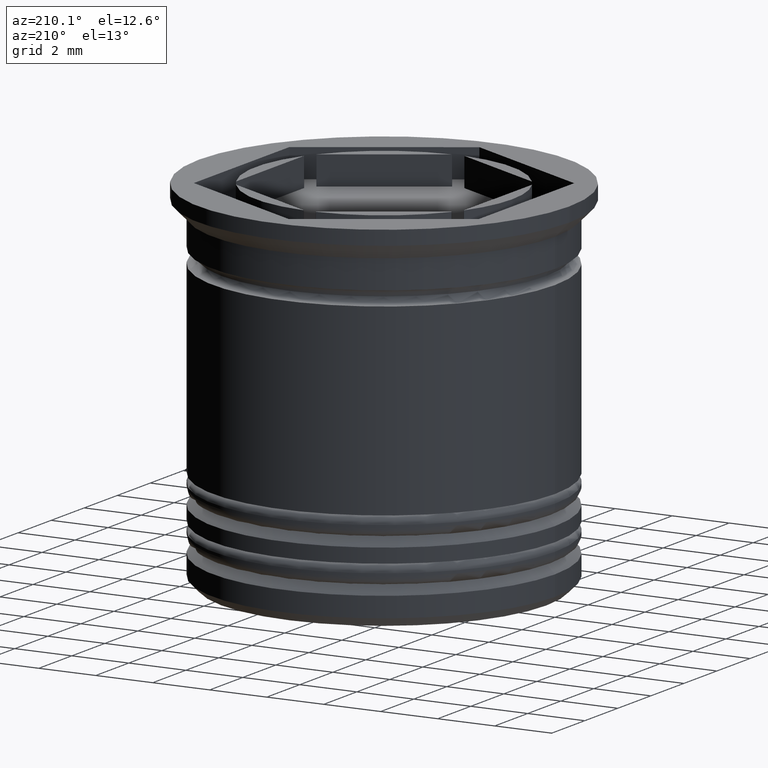
[diagram: clean part render]
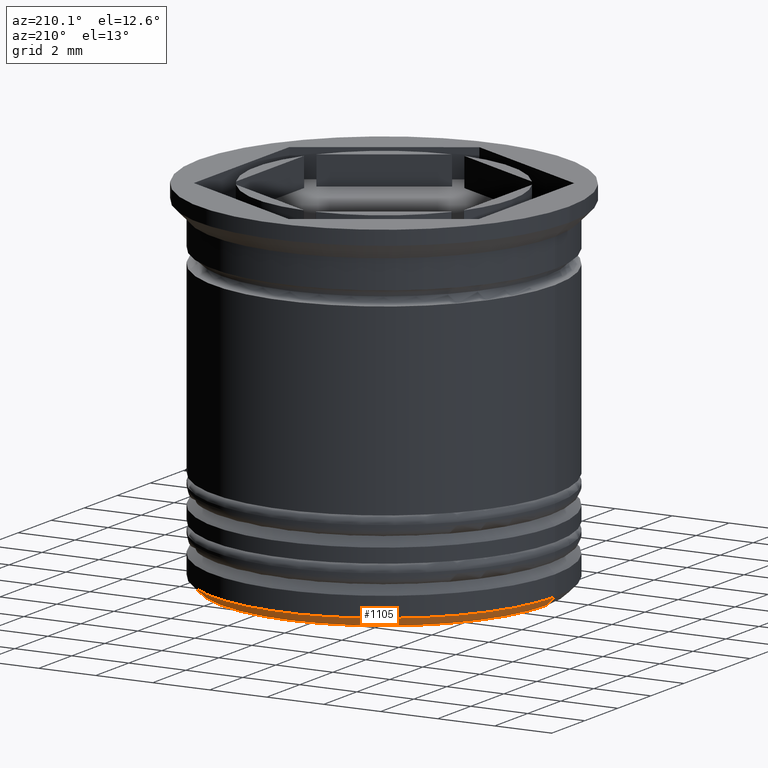
[diagram: same view with one face highlighted and labeled with its STEP entity id]
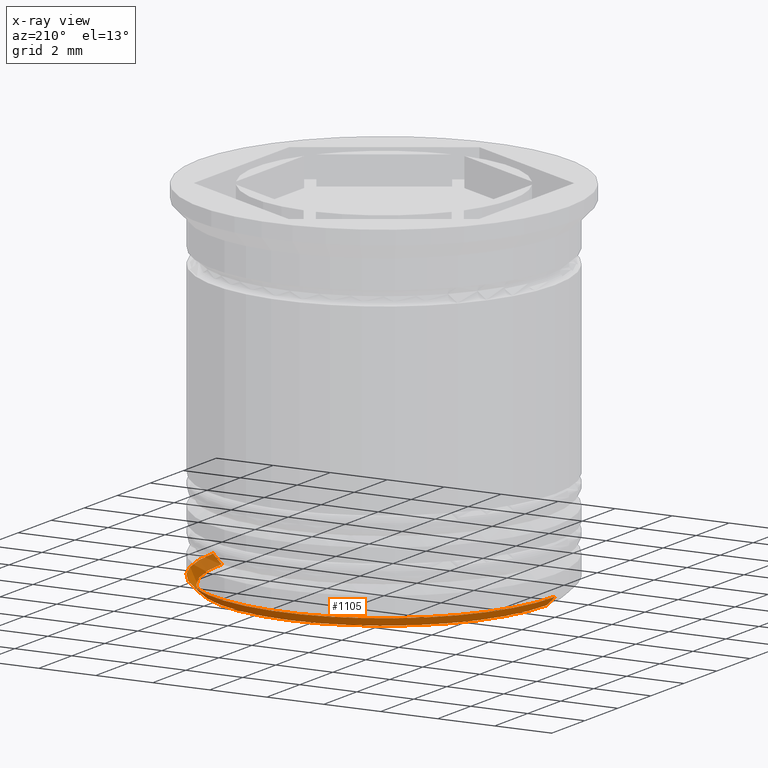
[diagram: x-ray of the same camera — body ghosted, the highlighted face saturated]
A machine part, auxiliary view. The second image highlights one B-rep face of the part: STEP entity #1105.
The next image is the same camera in x-ray: the body ghosted, the highlighted face saturated — about 14% of this face is hidden behind the body in this view.
In plain terms, the highlighted conical surface has half-angle 45 deg.
Its self-contained STEP definition (entity closure, byte-faithful):
#160 = VERTEX_POINT ( 'NONE', #1723 ) ;
#170 = VERTEX_POINT ( 'NONE', #763 ) ;
#221 = AXIS2_PLACEMENT_3D ( 'NONE', #1974, #1983, #608 ) ;
#340 = FACE_OUTER_BOUND ( 'NONE', #1393, .T. ) ;
#457 = ORIENTED_EDGE ( 'NONE', *, *, #1081, .F. ) ;
#501 = DIRECTION ( 'NONE',  ( -0.000000000000000000, -0.000000000000000000, 1.000000000000000000 ) ) ;
#608 = DIRECTION ( 'NONE',  ( -1.000000000000000000, 0.000000000000000000, 0.000000000000000000 ) ) ;
#685 = CARTESIAN_POINT ( 'NONE',  ( 0.000000000000000000, 0.000000000000000000, -12.19999999999999574 ) ) ;
#710 = CONICAL_SURFACE ( 'NONE', #1414, 6.000000000000001776, 0.7853981633974497223 ) ;
#763 = CARTESIAN_POINT ( 'NONE',  ( 6.000000000000001776, 0.000000000000000000, -12.19999999999999574 ) ) ;
#801 = DIRECTION ( 'NONE',  ( 1.000000000000000000, 0.000000000000000000, 0.000000000000000000 ) ) ;
#803 = CIRCLE ( 'NONE', #221, 5.699999999999995737 ) ;
#881 = ORIENTED_EDGE ( 'NONE', *, *, #1628, .T. ) ;
#1039 = LINE ( 'NONE', #1510, #1256 ) ;
#1081 = EDGE_CURVE ( 'NONE', #160, #1629, #803, .T. ) ;
#1090 = DIRECTION ( 'NONE',  ( -1.000000000000000000, 0.000000000000000000, 0.000000000000000000 ) ) ;
#1105 = ADVANCED_FACE ( 'NONE', ( #340 ), #710, .T. ) ;
#1127 = CIRCLE ( 'NONE', #1650, 6.000000000000001776 ) ;
#1132 = DIRECTION ( 'NONE',  ( -0.000000000000000000, -0.000000000000000000, 1.000000000000000000 ) ) ;
#1189 = CARTESIAN_POINT ( 'NONE',  ( -6.000000000000001776, 7.347880794884120722E-16, -12.19999999999999574 ) ) ;
#1256 = VECTOR ( 'NONE', #1334, 999.9999999999998863 ) ;
#1264 = EDGE_CURVE ( 'NONE', #1629, #170, #1039, .T. ) ;
#1334 = DIRECTION ( 'NONE',  ( 0.7071067811865486830, 0.000000000000000000, 0.7071067811865464625 ) ) ;
#1350 = DIRECTION ( 'NONE',  ( -0.7071067811865486830, 8.659560562354945184E-17, 0.7071067811865464625 ) ) ;
#1393 = EDGE_LOOP ( 'NONE', ( #457, #881, #1990, #1931 ) ) ;
#1414 = AXIS2_PLACEMENT_3D ( 'NONE', #685, #501, #801 ) ;
#1455 = VECTOR ( 'NONE', #1350, 999.9999999999998863 ) ;
#1461 = CARTESIAN_POINT ( 'NONE',  ( -6.000000000000001776, 7.347880794884121708E-16, -12.19999999999999574 ) ) ;
#1510 = CARTESIAN_POINT ( 'NONE',  ( 6.000000000000001776, 0.000000000000000000, -12.19999999999999574 ) ) ;
#1628 = EDGE_CURVE ( 'NONE', #160, #1689, #1938, .T. ) ;
#1629 = VERTEX_POINT ( 'NONE', #1793 ) ;
#1650 = AXIS2_PLACEMENT_3D ( 'NONE', #1894, #1132, #1090 ) ;
#1659 = EDGE_CURVE ( 'NONE', #170, #1689, #1127, .T. ) ;
#1689 = VERTEX_POINT ( 'NONE', #1461 ) ;
#1723 = CARTESIAN_POINT ( 'NONE',  ( -5.699999999999995737, 7.164183775012013464E-16, -12.50000000000000000 ) ) ;
#1793 = CARTESIAN_POINT ( 'NONE',  ( 5.699999999999995737, 0.000000000000000000, -12.50000000000000000 ) ) ;
#1894 = CARTESIAN_POINT ( 'NONE',  ( 0.000000000000000000, 0.000000000000000000, -12.19999999999999574 ) ) ;
#1931 = ORIENTED_EDGE ( 'NONE', *, *, #1264, .F. ) ;
#1938 = LINE ( 'NONE', #1189, #1455 ) ;
#1974 = CARTESIAN_POINT ( 'NONE',  ( 0.000000000000000000, 0.000000000000000000, -12.50000000000000000 ) ) ;
#1983 = DIRECTION ( 'NONE',  ( 0.000000000000000000, 0.000000000000000000, -1.000000000000000000 ) ) ;
#1990 = ORIENTED_EDGE ( 'NONE', *, *, #1659, .F. ) ;